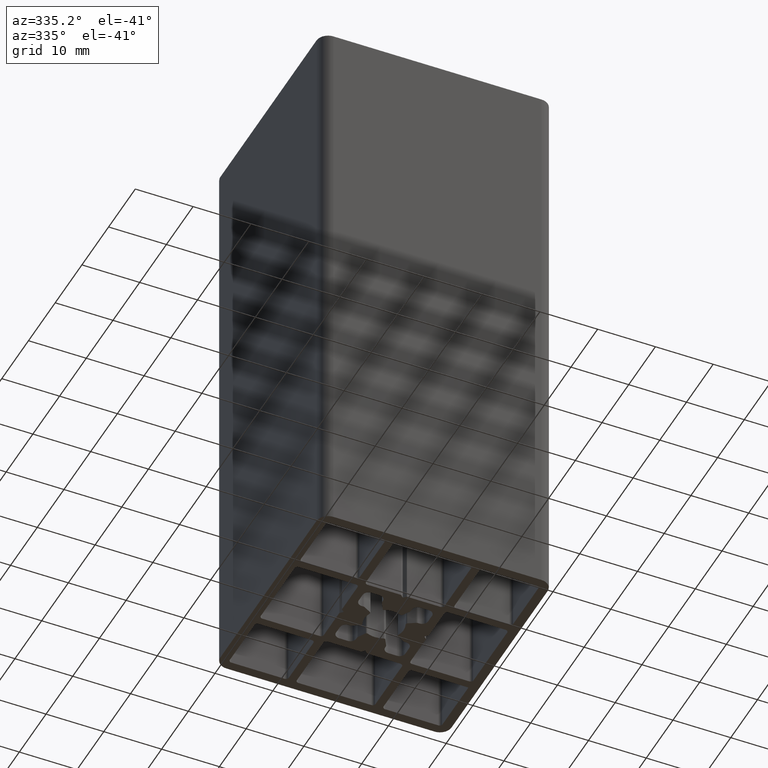
[diagram: clean part render]
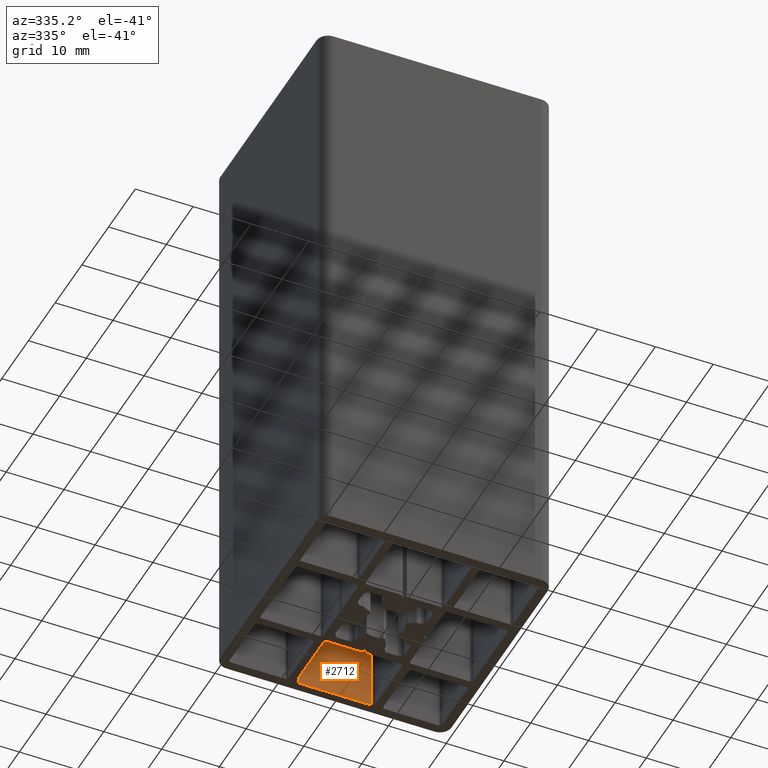
[diagram: same view with one face highlighted and labeled with its STEP entity id]
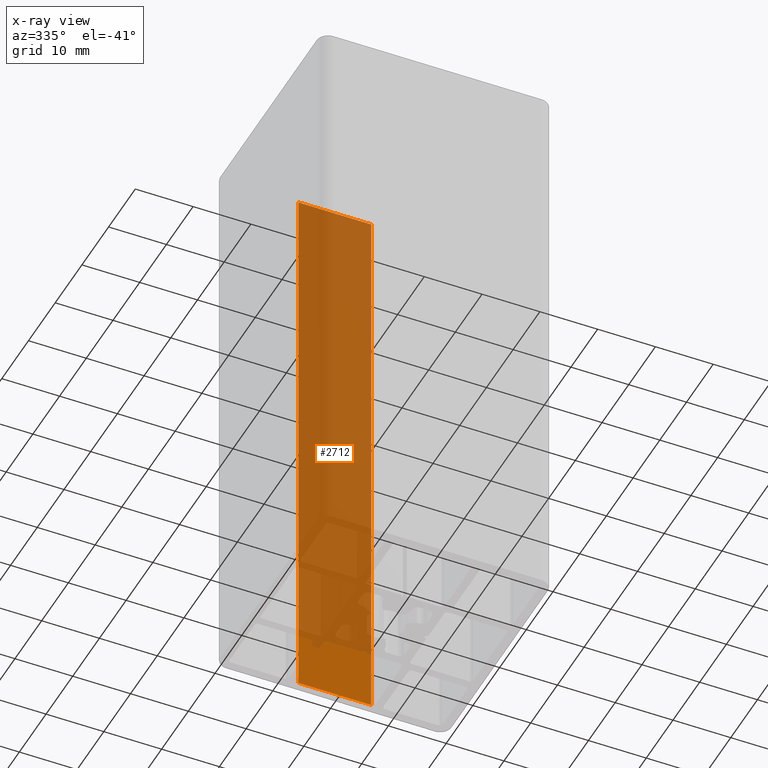
[diagram: x-ray of the same camera — body ghosted, the highlighted face saturated]
A machine part, auxiliary view. The second image highlights one B-rep face of the part: STEP entity #2712.
The next image is the same camera in x-ray: the body ghosted, the highlighted face saturated — about 90% of this face is hidden behind the body in this view.
In plain terms, the highlighted planar face has unit normal (-0, 1, 0).
Its self-contained STEP definition (entity closure, byte-faithful):
#243=FACE_OUTER_BOUND('',#384,.T.);
#384=EDGE_LOOP('',(#1831,#1832,#1833,#1834));
#555=LINE('',#4013,#838);
#556=LINE('',#4016,#839);
#557=LINE('',#4018,#840);
#558=LINE('',#4019,#841);
#838=VECTOR('',#3174,100.);
#839=VECTOR('',#3177,12.6);
#840=VECTOR('',#3178,12.6);
#841=VECTOR('',#3179,100.);
#1118=VERTEX_POINT('',#4009);
#1119=VERTEX_POINT('',#4011);
#1120=VERTEX_POINT('',#4015);
#1121=VERTEX_POINT('',#4017);
#1405=EDGE_CURVE('',#1118,#1119,#555,.T.);
#1406=EDGE_CURVE('',#1118,#1120,#556,.T.);
#1407=EDGE_CURVE('',#1121,#1119,#557,.T.);
#1408=EDGE_CURVE('',#1120,#1121,#558,.T.);
#1831=ORIENTED_EDGE('',*,*,#1406,.F.);
#1832=ORIENTED_EDGE('',*,*,#1405,.T.);
#1833=ORIENTED_EDGE('',*,*,#1407,.F.);
#1834=ORIENTED_EDGE('',*,*,#1408,.F.);
#2635=PLANE('',#2861);
#2712=ADVANCED_FACE('',(#243),#2635,.F.);
#2861=AXIS2_PLACEMENT_3D('',#4014,#3175,#3176);
#3174=DIRECTION('',(0.,0.,-1.));
#3175=DIRECTION('center_axis',(-1.76225876924628E-16,1.,0.));
#3176=DIRECTION('ref_axis',(-1.,0.,0.));
#3177=DIRECTION('',(1.,1.76225876924628E-16,0.));
#3178=DIRECTION('',(-1.,-1.76225876924628E-16,0.));
#3179=DIRECTION('',(0.,0.,-1.));
#4009=CARTESIAN_POINT('',(-6.3,18.3999970364283,100.));
#4011=CARTESIAN_POINT('',(-6.3,18.3999970364283,0.));
#4013=CARTESIAN_POINT('',(-6.3,18.3999970364283,0.));
#4014=CARTESIAN_POINT('Origin',(6.3,18.3999970364283,0.));
#4015=CARTESIAN_POINT('',(6.3,18.3999970364283,100.));
#4016=CARTESIAN_POINT('',(3.15,18.3999970364283,100.));
#4017=CARTESIAN_POINT('',(6.3,18.3999970364283,0.));
#4018=CARTESIAN_POINT('',(3.15,18.3999970364283,0.));
#4019=CARTESIAN_POINT('',(6.3,18.3999970364283,0.));